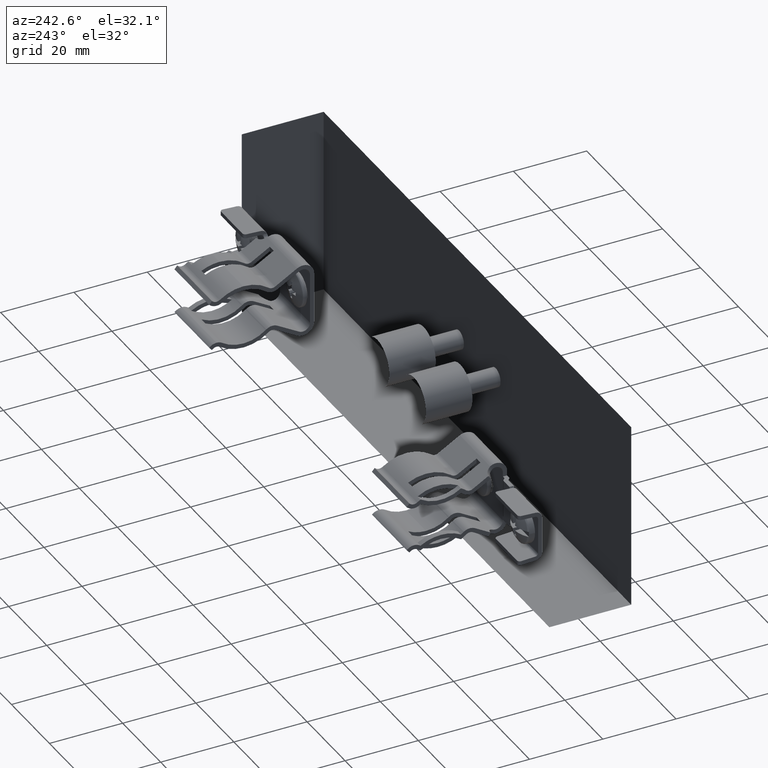
[diagram: clean part render]
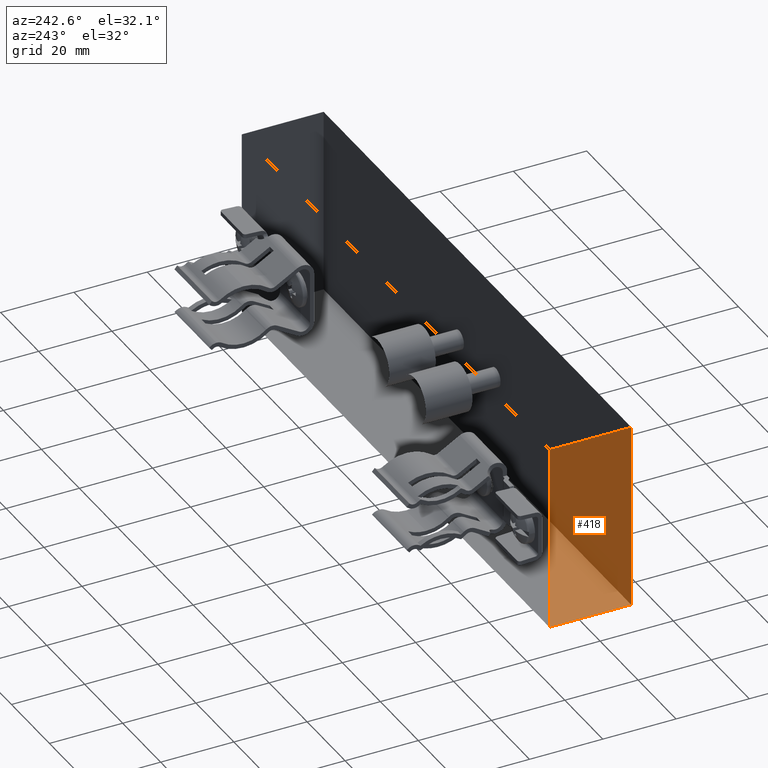
[diagram: same view with one face highlighted and labeled with its STEP entity id]
A machine part, auxiliary view. The second image highlights one B-rep face of the part: STEP entity #418.
In plain terms, the highlighted planar face has unit normal (1, -0, 0).
Its self-contained STEP definition (entity closure, byte-faithful):
#354 = LINE ( 'NONE', #4794, #11059 ) ;
#418 = ADVANCED_FACE ( 'NONE', ( #3712 ), #9093, .T. ) ;
#424 = VECTOR ( 'NONE', #3910, 39.37007874015748100 ) ;
#638 = CARTESIAN_POINT ( 'NONE',  ( -1.279999999999999800, 0.3925000000000006800, -1.000000000000000200 ) ) ;
#731 = DIRECTION ( 'NONE',  ( 1.000000000000000000, -0.0000000000000000000, 0.0000000000000000000 ) ) ;
#790 = DIRECTION ( 'NONE',  ( 0.0000000000000000000, -1.000000000000000000, -0.0000000000000000000 ) ) ;
#839 = EDGE_CURVE ( 'NONE', #7217, #13440, #354, .T. ) ;
#1314 = EDGE_CURVE ( 'NONE', #11858, #9672, #1625, .T. ) ;
#1448 = AXIS2_PLACEMENT_3D ( 'NONE', #11352, #731, #1895 ) ;
#1625 = LINE ( 'NONE', #2408, #4056 ) ;
#1760 = ORIENTED_EDGE ( 'NONE', *, *, #9829, .F. ) ;
#1895 = DIRECTION ( 'NONE',  ( 0.0000000000000000000, 0.0000000000000000000, -1.000000000000000000 ) ) ;
#2408 = CARTESIAN_POINT ( 'NONE',  ( -1.279999999999999800, -0.4874999999999996600, -1.000000000000000200 ) ) ;
#2727 = CARTESIAN_POINT ( 'NONE',  ( -1.279999999999999800, 0.3925000000000004000, 0.9999999999999998900 ) ) ;
#3712 = FACE_OUTER_BOUND ( 'NONE', #9237, .T. ) ;
#3765 = DIRECTION ( 'NONE',  ( -0.0000000000000000000, -0.0000000000000000000, 1.000000000000000000 ) ) ;
#3910 = DIRECTION ( 'NONE',  ( 0.0000000000000000000, 0.0000000000000000000, 1.000000000000000000 ) ) ;
#4014 = ORIENTED_EDGE ( 'NONE', *, *, #1314, .F. ) ;
#4056 = VECTOR ( 'NONE', #10062, 39.37007874015748100 ) ;
#4794 = CARTESIAN_POINT ( 'NONE',  ( -1.279999999999999800, -0.4874999999999996600, 0.9999999999999998900 ) ) ;
#4980 = CARTESIAN_POINT ( 'NONE',  ( -1.279999999999999800, -0.4874999999999996600, 0.9999999999999998900 ) ) ;
#6758 = CARTESIAN_POINT ( 'NONE',  ( -1.279999999999999800, -0.4874999999999996600, -1.000000000000000200 ) ) ;
#7217 = VERTEX_POINT ( 'NONE', #9351 ) ;
#7385 = LINE ( 'NONE', #2727, #12588 ) ;
#8033 = LINE ( 'NONE', #4980, #424 ) ;
#9093 = PLANE ( 'NONE',  #1448 ) ;
#9237 = EDGE_LOOP ( 'NONE', ( #1760, #4014, #12554, #13107 ) ) ;
#9351 = CARTESIAN_POINT ( 'NONE',  ( -1.279999999999999800, 0.3925000000000006800, 0.9999999999999998900 ) ) ;
#9672 = VERTEX_POINT ( 'NONE', #6758 ) ;
#9829 = EDGE_CURVE ( 'NONE', #9672, #13440, #8033, .T. ) ;
#10062 = DIRECTION ( 'NONE',  ( 0.0000000000000000000, -1.000000000000000000, -0.0000000000000000000 ) ) ;
#10672 = EDGE_CURVE ( 'NONE', #11858, #7217, #7385, .T. ) ;
#11059 = VECTOR ( 'NONE', #790, 39.37007874015748100 ) ;
#11352 = CARTESIAN_POINT ( 'NONE',  ( -1.279999999999999800, 0.3925000000000004000, 0.9999999999999998900 ) ) ;
#11858 = VERTEX_POINT ( 'NONE', #638 ) ;
#12554 = ORIENTED_EDGE ( 'NONE', *, *, #10672, .T. ) ;
#12588 = VECTOR ( 'NONE', #3765, 39.37007874015748100 ) ;
#13107 = ORIENTED_EDGE ( 'NONE', *, *, #839, .T. ) ;
#13147 = CARTESIAN_POINT ( 'NONE',  ( -1.279999999999999800, -0.4874999999999996600, 0.9999999999999998900 ) ) ;
#13440 = VERTEX_POINT ( 'NONE', #13147 ) ;